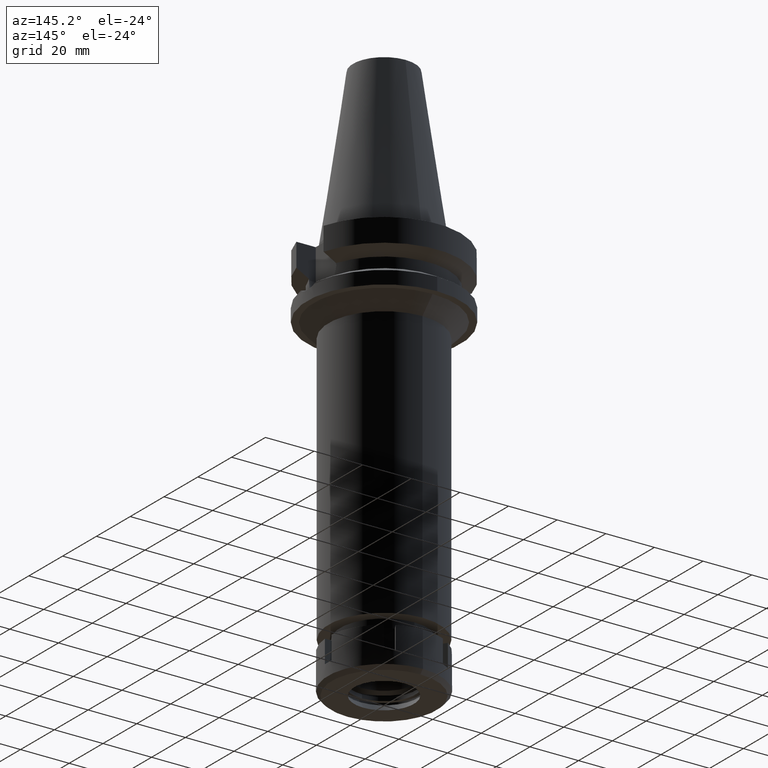
[diagram: clean part render]
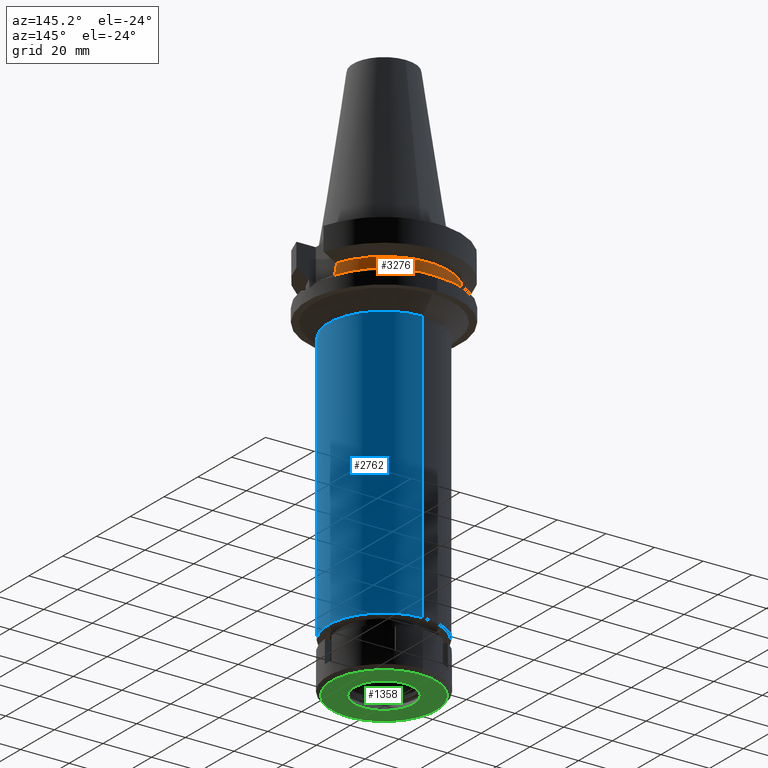
[diagram: same view with three faces highlighted in distinct colors, each labeled with its STEP entity id]
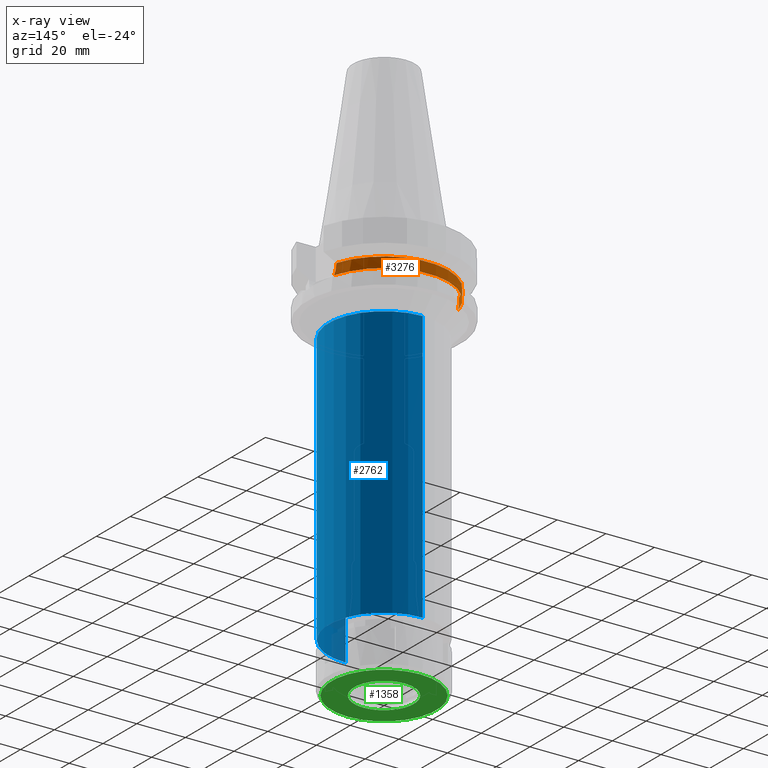
[diagram: x-ray of the same camera — body ghosted, the three highlighted faces saturated]
A machine part, auxiliary view with three faces highlighted in distinct colors.
The next image is the same camera in x-ray (body ghosted, the three faces saturated) — at least one of them is partly hidden behind the body in this view.
Their STEP definitions:

[orange] entity #3276 — the highlighted cylindrical surface (partial cylindrical patch) has radius 26.5 mm, axis along (0, 0, -1).
#127 = VERTEX_POINT ( 'NONE', #1339 ) ;
#144 = CARTESIAN_POINT ( 'NONE',  ( -25.24772266958000344, 8.050000000000000711, -14.94999999999999929 ) ) ;
#183 = DIRECTION ( 'NONE',  ( 2.936344683098950112E-06, -9.209448786820827461E-06, 0.9999999999532819261 ) ) ;
#218 = DIRECTION ( 'NONE',  ( -0.9527442516822307583, 0.3037735849057093818, 0.0000000000000000000 ) ) ;
#228 = CARTESIAN_POINT ( 'NONE',  ( -25.53175183775000079, 7.097862220092999941, -18.74774300138999905 ) ) ;
#362 = EDGE_LOOP ( 'NONE', ( #751, #487, #537, #3014, #2577, #1886 ) ) ;
#366 = CARTESIAN_POINT ( 'NONE',  ( -25.31954463780457587, 7.821394976198481785, -16.85491936549455971 ) ) ;
#403 = B_SPLINE_CURVE_WITH_KNOTS ( 'NONE', 3,
 ( #2496, #568, #3065, #3095, #2754, #1692, #3615, #821, #2819, #1920, #3046, #1937, #1415, #518 ),
 .UNSPECIFIED., .F., .F.,
 ( 4, 2, 2, 1, 1, 2, 2, 4 ),
 ( 0.0000000000000000000, 0.2499999999999773515, 0.3749999999999648059, 0.4374999999999586997, 0.4687499999999569789, 0.4843749999999561462, 0.4999999999999552580, 1.000000000000000000 ),
 .UNSPECIFIED. ) ;
#406 = CARTESIAN_POINT ( 'NONE',  ( -25.30215616128705136, 7.877576232114727794, -16.61085564858990082 ) ) ;
#412 = CARTESIAN_POINT ( 'NONE',  ( 0.0000000000000000000, 0.0000000000000000000, -18.74774300138999905 ) ) ;
#487 = ORIENTED_EDGE ( 'NONE', *, *, #1855, .F. ) ;
#508 = CARTESIAN_POINT ( 'NONE',  ( 25.24772413102000002, 8.049995416383998403, -14.45229202342000008 ) ) ;
#514 = CIRCLE ( 'NONE', #3104, 26.50000000000000000 ) ;
#518 = CARTESIAN_POINT ( 'NONE',  ( 25.24772266958000344, 8.050000000000000711, -14.94999999999999929 ) ) ;
#537 = ORIENTED_EDGE ( 'NONE', *, *, #650, .F. ) ;
#568 = CARTESIAN_POINT ( 'NONE',  ( 25.48481820018147914, 7.266687417059683796, -18.43221401827393890 ) ) ;
#650 = EDGE_CURVE ( 'NONE', #2292, #1828, #403, .T. ) ;
#692 = CARTESIAN_POINT ( 'NONE',  ( -25.28049982587671707, 7.946985634402442322, -16.24435369772060156 ) ) ;
#751 = ORIENTED_EDGE ( 'NONE', *, *, #3301, .T. ) ;
#809 = AXIS2_PLACEMENT_3D ( 'NONE', #2457, #2774, #1883 ) ;
#821 = CARTESIAN_POINT ( 'NONE',  ( 25.33292553851903151, 7.777985707518505265, -17.02558215514781992 ) ) ;
#910 = CARTESIAN_POINT ( 'NONE',  ( -25.53175183775000079, 7.097862220092999941, -18.74774300138999905 ) ) ;
#965 = CARTESIAN_POINT ( 'NONE',  ( -25.31205759391835741, 7.845621557329842233, -16.75326793494526711 ) ) ;
#1032 = CARTESIAN_POINT ( 'NONE',  ( 25.53175183775000079, 7.097862220092999941, -18.74774300138999905 ) ) ;
#1075 = CARTESIAN_POINT ( 'NONE',  ( 25.24772266958000344, 8.050000000000000711, -14.94999999999999929 ) ) ;
#1261 = CARTESIAN_POINT ( 'NONE',  ( -25.36818304348092923, 7.663708172131208585, -17.48836484279920711 ) ) ;
#1265 = DIRECTION ( 'NONE',  ( 0.0000000000000000000, 0.0000000000000000000, 1.000000000000000000 ) ) ;
#1284 = FACE_OUTER_BOUND ( 'NONE', #362, .T. ) ;
#1321 = CARTESIAN_POINT ( 'NONE',  ( 0.0000000000000000000, 1.065333950388000029E-14, -14.45225699861000024 ) ) ;
#1339 = CARTESIAN_POINT ( 'NONE',  ( -25.24772266958000344, 8.050000000000000711, -14.94999999999999929 ) ) ;
#1362 = LINE ( 'NONE', #1075, #2103 ) ;
#1389 = VECTOR ( 'NONE', #3050, 1000.000000000000114 ) ;
#1415 = CARTESIAN_POINT ( 'NONE',  ( 25.24772266957998923, 8.049999999999998934, -15.58999073683360237 ) ) ;
#1510 = CARTESIAN_POINT ( 'NONE',  ( -25.32121872273786067, 7.815971166074239029, -16.87703378351244154 ) ) ;
#1565 = CARTESIAN_POINT ( 'NONE',  ( -25.27269574104415994, 7.971769475022786544, -16.08146184953518443 ) ) ;
#1692 = CARTESIAN_POINT ( 'NONE',  ( 25.35411833098577716, 7.708843546321432427, -17.27003765534289670 ) ) ;
#1828 = VERTEX_POINT ( 'NONE', #2719 ) ;
#1855 = EDGE_CURVE ( 'NONE', #1828, #2255, #1362, .T. ) ;
#1867 = CARTESIAN_POINT ( 'NONE',  ( -25.24772216375000156, 8.050001586471001502, -14.45224487658000001 ) ) ;
#1883 = DIRECTION ( 'NONE',  ( 0.0000000000000000000, -1.000000000000000000, 0.0000000000000000000 ) ) ;
#1886 = ORIENTED_EDGE ( 'NONE', *, *, #2722, .F. ) ;
#1901 = DIRECTION ( 'NONE',  ( 0.0000000000000000000, 0.0000000000000000000, -1.000000000000000000 ) ) ;
#1920 = CARTESIAN_POINT ( 'NONE',  ( 25.32550226136618932, 7.802082245155967932, -16.93251888162995655 ) ) ;
#1937 = CARTESIAN_POINT ( 'NONE',  ( 25.27269246206562414, 7.973290322427805776, -16.24535685338602775 ) ) ;
#2103 = VECTOR ( 'NONE', #183, 1000.000000000000114 ) ;
#2234 = VERTEX_POINT ( 'NONE', #228 ) ;
#2255 = VERTEX_POINT ( 'NONE', #508 ) ;
#2292 = VERTEX_POINT ( 'NONE', #1032 ) ;
#2345 = CARTESIAN_POINT ( 'NONE',  ( -25.29454717857531421, 7.902012029789251102, -16.48868902742450970 ) ) ;
#2353 = DIRECTION ( 'NONE',  ( 0.0000000000000000000, 1.000000000000000000, 0.0000000000000000000 ) ) ;
#2384 = CARTESIAN_POINT ( 'NONE',  ( -25.25396593744603635, 8.030896968456861629, -15.59377931114971183 ) ) ;
#2457 = CARTESIAN_POINT ( 'NONE',  ( 0.0000000000000000000, 2.161746529854999700E-14, 76.52000000000001023 ) ) ;
#2471 = AXIS2_PLACEMENT_3D ( 'NONE', #1321, #1901, #218 ) ;
#2496 = CARTESIAN_POINT ( 'NONE',  ( 25.53175183775000079, 7.097862220092999941, -18.74774300138999905 ) ) ;
#2516 = B_SPLINE_CURVE_WITH_KNOTS ( 'NONE', 3,
 ( #144, #2646, #2384, #1565, #692, #2345, #406, #965, #3181, #366, #1510, #1261, #3471, #910 ),
 .UNSPECIFIED., .F., .F.,
 ( 4, 2, 2, 1, 1, 2, 2, 4 ),
 ( 0.0000000000000000000, 0.2500000000000045519, 0.3750000000000056066, 0.4375000000000061062, 0.4687500000000052736, 0.4843750000000049960, 0.5000000000000046629, 1.000000000000000000 ),
 .UNSPECIFIED. ) ;
#2577 = ORIENTED_EDGE ( 'NONE', *, *, #3091, .F. ) ;
#2609 = EDGE_CURVE ( 'NONE', #2292, #2234, #514, .T. ) ;
#2646 = CARTESIAN_POINT ( 'NONE',  ( -25.24772266958000344, 8.050000000000018474, -15.27000127552689257 ) ) ;
#2719 = CARTESIAN_POINT ( 'NONE',  ( 25.24772266958000344, 8.050000000000000711, -14.94999999999999929 ) ) ;
#2722 = EDGE_CURVE ( 'NONE', #3160, #127, #3349, .T. ) ;
#2754 = CARTESIAN_POINT ( 'NONE',  ( 25.37572817765628841, 7.637723572231249314, -17.49814693643546448 ) ) ;
#2774 = DIRECTION ( 'NONE',  ( 0.0000000000000000000, 0.0000000000000000000, -1.000000000000000000 ) ) ;
#2816 = CIRCLE ( 'NONE', #2471, 26.50000000000000711 ) ;
#2819 = CARTESIAN_POINT ( 'NONE',  ( 25.32844325893252702, 7.792538688759799825, -16.96970524096439448 ) ) ;
#3014 = ORIENTED_EDGE ( 'NONE', *, *, #2609, .T. ) ;
#3046 = CARTESIAN_POINT ( 'NONE',  ( 25.32419265906722927, 7.806329682138427373, -16.91574545218137615 ) ) ;
#3050 = DIRECTION ( 'NONE',  ( -1.016224662221004237E-06, -3.187251312399015996E-06, -0.9999999999944043649 ) ) ;
#3065 = CARTESIAN_POINT ( 'NONE',  ( 25.44392473217112283, 7.408251102527441567, -18.11706870839242001 ) ) ;
#3091 = EDGE_CURVE ( 'NONE', #127, #2234, #2516, .T. ) ;
#3095 = CARTESIAN_POINT ( 'NONE',  ( 25.39164478449283635, 7.584820969905358368, -17.65194245033610088 ) ) ;
#3104 = AXIS2_PLACEMENT_3D ( 'NONE', #412, #1265, #2353 ) ;
#3160 = VERTEX_POINT ( 'NONE', #3599 ) ;
#3181 = CARTESIAN_POINT ( 'NONE',  ( -25.31652055493196229, 7.831184758220201658, -16.81426458566338411 ) ) ;
#3276 = ADVANCED_FACE ( 'NONE', ( #1284 ), #3289, .T. ) ;
#3289 = CYLINDRICAL_SURFACE ( 'NONE', #809, 26.50000000000000000 ) ;
#3301 = EDGE_CURVE ( 'NONE', #3160, #2255, #2816, .T. ) ;
#3349 = LINE ( 'NONE', #1867, #1389 ) ;
#3471 = CARTESIAN_POINT ( 'NONE',  ( -25.43788636140676118, 7.435506143573715754, -18.11669712823439582 ) ) ;
#3599 = CARTESIAN_POINT ( 'NONE',  ( -25.24772216375000156, 8.050001586471001502, -14.45224487658000001 ) ) ;
#3615 = CARTESIAN_POINT ( 'NONE',  ( 25.34387967354658855, 7.742345491376021016, -17.15662736174668979 ) ) ;

[blue] entity #2762 — the highlighted cylindrical surface (partial cylindrical patch) has radius 22.75 mm, axis along (0, 0, -1).
#7 = LINE ( 'NONE', #1130, #3036 ) ;
#45 = ORIENTED_EDGE ( 'NONE', *, *, #2910, .F. ) ;
#73 = VERTEX_POINT ( 'NONE', #2747 ) ;
#104 = EDGE_LOOP ( 'NONE', ( #2573, #213, #1266, #45 ) ) ;
#106 = AXIS2_PLACEMENT_3D ( 'NONE', #768, #3559, #2160 ) ;
#213 = ORIENTED_EDGE ( 'NONE', *, *, #665, .T. ) ;
#216 = AXIS2_PLACEMENT_3D ( 'NONE', #1922, #1082, #3273 ) ;
#298 = LINE ( 'NONE', #1434, #2229 ) ;
#591 = DIRECTION ( 'NONE',  ( 0.0000000000000000000, 0.0000000000000000000, -1.000000000000000000 ) ) ;
#665 = EDGE_CURVE ( 'NONE', #73, #2042, #7, .T. ) ;
#768 = CARTESIAN_POINT ( 'NONE',  ( 0.0000000000000000000, 0.0000000000000000000, -33.00000000000000000 ) ) ;
#900 = AXIS2_PLACEMENT_3D ( 'NONE', #2472, #3608, #3060 ) ;
#967 = VERTEX_POINT ( 'NONE', #3282 ) ;
#1073 = EDGE_CURVE ( 'NONE', #2042, #967, #3156, .T. ) ;
#1078 = DIRECTION ( 'NONE',  ( 0.0000000000000000000, 0.0000000000000000000, -1.000000000000000000 ) ) ;
#1082 = DIRECTION ( 'NONE',  ( 0.0000000000000000000, 0.0000000000000000000, -1.000000000000000000 ) ) ;
#1130 = CARTESIAN_POINT ( 'NONE',  ( 0.0000000000000000000, -22.75000000000000000, -33.00000000000000000 ) ) ;
#1266 = ORIENTED_EDGE ( 'NONE', *, *, #1073, .T. ) ;
#1434 = CARTESIAN_POINT ( 'NONE',  ( 0.0000000000000000000, 22.75000000000000000, -33.00000000000000000 ) ) ;
#1922 = CARTESIAN_POINT ( 'NONE',  ( 0.0000000000000000000, 2.161746529854999700E-14, 76.52000000000001023 ) ) ;
#1986 = VERTEX_POINT ( 'NONE', #3092 ) ;
#2042 = VERTEX_POINT ( 'NONE', #3056 ) ;
#2160 = DIRECTION ( 'NONE',  ( 0.0000000000000000000, 1.000000000000000000, 0.0000000000000000000 ) ) ;
#2229 = VECTOR ( 'NONE', #591, 1000.000000000000000 ) ;
#2232 = CIRCLE ( 'NONE', #106, 22.75000000000000000 ) ;
#2472 = CARTESIAN_POINT ( 'NONE',  ( 0.0000000000000000000, 2.161746529854999700E-14, -144.5000000000000000 ) ) ;
#2482 = FACE_OUTER_BOUND ( 'NONE', #104, .T. ) ;
#2573 = ORIENTED_EDGE ( 'NONE', *, *, #3263, .T. ) ;
#2747 = CARTESIAN_POINT ( 'NONE',  ( 0.0000000000000000000, -22.75000000000000000, -33.00000000000000000 ) ) ;
#2762 = ADVANCED_FACE ( 'NONE', ( #2482 ), #2994, .T. ) ;
#2910 = EDGE_CURVE ( 'NONE', #1986, #967, #298, .T. ) ;
#2994 = CYLINDRICAL_SURFACE ( 'NONE', #216, 22.75000000000000000 ) ;
#3036 = VECTOR ( 'NONE', #1078, 1000.000000000000000 ) ;
#3056 = CARTESIAN_POINT ( 'NONE',  ( 0.0000000000000000000, -22.75000000000000000, -144.5000000000000000 ) ) ;
#3060 = DIRECTION ( 'NONE',  ( 0.0000000000000000000, -1.000000000000000000, 0.0000000000000000000 ) ) ;
#3092 = CARTESIAN_POINT ( 'NONE',  ( 0.0000000000000000000, 22.75000000000000000, -33.00000000000000000 ) ) ;
#3156 = CIRCLE ( 'NONE', #900, 22.75000000000000000 ) ;
#3263 = EDGE_CURVE ( 'NONE', #1986, #73, #2232, .T. ) ;
#3273 = DIRECTION ( 'NONE',  ( 0.0000000000000000000, -1.000000000000000000, 0.0000000000000000000 ) ) ;
#3282 = CARTESIAN_POINT ( 'NONE',  ( 0.0000000000000000000, 22.75000000000000000, -144.5000000000000000 ) ) ;
#3559 = DIRECTION ( 'NONE',  ( 0.0000000000000000000, 0.0000000000000000000, -1.000000000000000000 ) ) ;
#3608 = DIRECTION ( 'NONE',  ( 0.0000000000000000000, 0.0000000000000000000, 1.000000000000000000 ) ) ;

[green] entity #1358 — the highlighted planar face has unit normal (0, 0, -1).
#51 = CARTESIAN_POINT ( 'NONE',  ( 0.0000000000000000000, 0.0000000000000000000, -16.00000000000000000 ) ) ;
#60 = CARTESIAN_POINT ( 'NONE',  ( 0.0000000000000000000, 12.25000000000000000, -16.00000000000000000 ) ) ;
#72 = DIRECTION ( 'NONE',  ( 0.0000000000000000000, 0.0000000000000000000, 1.000000000000000000 ) ) ;
#100 = AXIS2_PLACEMENT_3D ( 'NONE', #2593, #824, #312 ) ;
#235 = DIRECTION ( 'NONE',  ( 0.0000000000000000000, -1.000000000000000000, 0.0000000000000000000 ) ) ;
#312 = DIRECTION ( 'NONE',  ( 0.0000000000000000000, 1.000000000000000000, 0.0000000000000000000 ) ) ;
#316 = CARTESIAN_POINT ( 'NONE',  ( 0.0000000000000000000, 0.0000000000000000000, -16.00000000000000000 ) ) ;
#409 = VERTEX_POINT ( 'NONE', #3089 ) ;
#570 = CIRCLE ( 'NONE', #2406, 12.25000000000000000 ) ;
#618 = CARTESIAN_POINT ( 'NONE',  ( 0.0000000000000000000, -21.50000000000000000, -16.00000000000000000 ) ) ;
#621 = DIRECTION ( 'NONE',  ( 0.0000000000000000000, 0.0000000000000000000, -1.000000000000000000 ) ) ;
#722 = VERTEX_POINT ( 'NONE', #618 ) ;
#824 = DIRECTION ( 'NONE',  ( 0.0000000000000000000, 0.0000000000000000000, 1.000000000000000000 ) ) ;
#850 = AXIS2_PLACEMENT_3D ( 'NONE', #2868, #3146, #235 ) ;
#875 = EDGE_LOOP ( 'NONE', ( #2100, #3378 ) ) ;
#970 = AXIS2_PLACEMENT_3D ( 'NONE', #316, #72, #3423 ) ;
#1137 = CARTESIAN_POINT ( 'NONE',  ( 0.0000000000000000000, 0.0000000000000000000, -16.00000000000000000 ) ) ;
#1358 = ADVANCED_FACE ( 'NONE', ( #2194, #3323 ), #2770, .T. ) ;
#1400 = CIRCLE ( 'NONE', #100, 21.50000000000000000 ) ;
#2100 = ORIENTED_EDGE ( 'NONE', *, *, #2955, .F. ) ;
#2194 = FACE_OUTER_BOUND ( 'NONE', #875, .T. ) ;
#2330 = DIRECTION ( 'NONE',  ( 0.0000000000000000000, 0.0000000000000000000, -1.000000000000000000 ) ) ;
#2372 = EDGE_CURVE ( 'NONE', #722, #3331, #2807, .T. ) ;
#2400 = EDGE_CURVE ( 'NONE', #3404, #409, #570, .T. ) ;
#2406 = AXIS2_PLACEMENT_3D ( 'NONE', #1137, #2330, #2810 ) ;
#2410 = AXIS2_PLACEMENT_3D ( 'NONE', #51, #621, #3397 ) ;
#2593 = CARTESIAN_POINT ( 'NONE',  ( 0.0000000000000000000, 0.0000000000000000000, -16.00000000000000000 ) ) ;
#2603 = CARTESIAN_POINT ( 'NONE',  ( 0.0000000000000000000, 21.50000000000000000, -16.00000000000000000 ) ) ;
#2770 = PLANE ( 'NONE',  #850 ) ;
#2807 = CIRCLE ( 'NONE', #970, 21.50000000000000000 ) ;
#2810 = DIRECTION ( 'NONE',  ( 0.0000000000000000000, 1.000000000000000000, 0.0000000000000000000 ) ) ;
#2868 = CARTESIAN_POINT ( 'NONE',  ( 0.0000000000000000000, 0.0000000000000000000, -16.00000000000000000 ) ) ;
#2875 = EDGE_CURVE ( 'NONE', #409, #3404, #3296, .T. ) ;
#2955 = EDGE_CURVE ( 'NONE', #3331, #722, #1400, .T. ) ;
#2991 = ORIENTED_EDGE ( 'NONE', *, *, #2400, .F. ) ;
#3016 = ORIENTED_EDGE ( 'NONE', *, *, #2875, .F. ) ;
#3089 = CARTESIAN_POINT ( 'NONE',  ( 0.0000000000000000000, -12.25000000000000000, -16.00000000000000000 ) ) ;
#3146 = DIRECTION ( 'NONE',  ( 0.0000000000000000000, 0.0000000000000000000, -1.000000000000000000 ) ) ;
#3296 = CIRCLE ( 'NONE', #2410, 12.25000000000000000 ) ;
#3323 = FACE_BOUND ( 'NONE', #3648, .T. ) ;
#3331 = VERTEX_POINT ( 'NONE', #2603 ) ;
#3378 = ORIENTED_EDGE ( 'NONE', *, *, #2372, .F. ) ;
#3397 = DIRECTION ( 'NONE',  ( 0.0000000000000000000, -1.000000000000000000, 0.0000000000000000000 ) ) ;
#3404 = VERTEX_POINT ( 'NONE', #60 ) ;
#3423 = DIRECTION ( 'NONE',  ( 0.0000000000000000000, -1.000000000000000000, 0.0000000000000000000 ) ) ;
#3648 = EDGE_LOOP ( 'NONE', ( #2991, #3016 ) ) ;